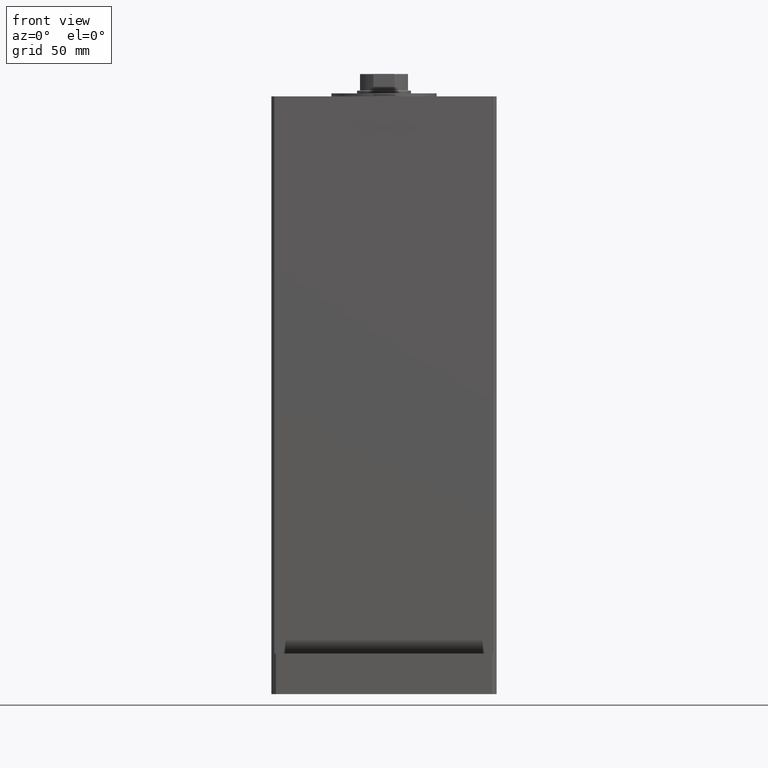
[diagram: clean part render]
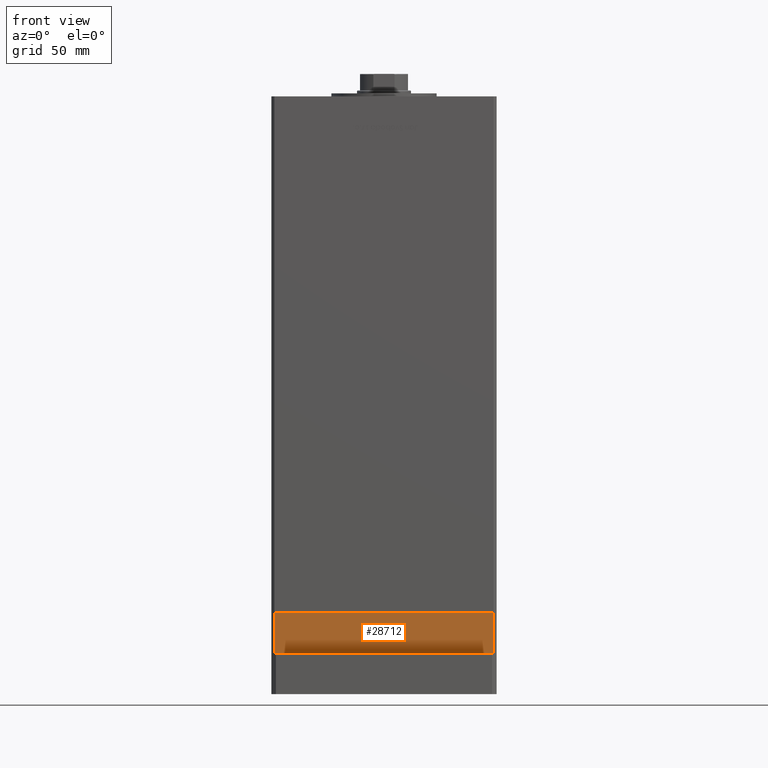
[diagram: same view with one face highlighted and labeled with its STEP entity id]
A machine part, front view. The second image highlights one B-rep face of the part: STEP entity #28712.
In plain terms, the highlighted planar face has unit normal (0, -1, -0).
Its self-contained STEP definition (entity closure, byte-faithful):
#2355 = ORIENTED_EDGE ( 'NONE', *, *, #38746, .T. ) ;
#5624 = CARTESIAN_POINT ( 'NONE',  ( -73.00000000000001421, -62.50000000000002842, -27.00000000000000000 ) ) ;
#7199 = VECTOR ( 'NONE', #11033, 1000.000000000000000 ) ;
#7972 = LINE ( 'NONE', #24619, #31412 ) ;
#10897 = ORIENTED_EDGE ( 'NONE', *, *, #37961, .F. ) ;
#11033 = DIRECTION ( 'NONE',  ( 0.000000000000000000, 0.000000000000000000, 1.000000000000000000 ) ) ;
#13716 = CARTESIAN_POINT ( 'NONE',  ( -73.00000000000001421, -62.50000000000002842, 0.000000000000000000 ) ) ;
#14303 = ORIENTED_EDGE ( 'NONE', *, *, #54893, .T. ) ;
#14787 = PLANE ( 'NONE',  #19098 ) ;
#15602 = LINE ( 'NONE', #33098, #7199 ) ;
#17461 = LINE ( 'NONE', #13716, #34366 ) ;
#19098 = AXIS2_PLACEMENT_3D ( 'NONE', #5624, #49468, #19653 ) ;
#19181 = LINE ( 'NONE', #36678, #31450 ) ;
#19195 = CARTESIAN_POINT ( 'NONE',  ( 73.00000000000001421, -62.50000000000001421, -27.00000000000000000 ) ) ;
#19653 = DIRECTION ( 'NONE',  ( 1.000000000000000000, 9.505334114941407284E-17, 0.000000000000000000 ) ) ;
#22659 = VERTEX_POINT ( 'NONE', #38121 ) ;
#24619 = CARTESIAN_POINT ( 'NONE',  ( -73.00000000000001421, -62.50000000000002842, -27.00000000000000000 ) ) ;
#28712 = ADVANCED_FACE ( 'NONE', ( #45752 ), #14787, .T. ) ;
#29560 = CARTESIAN_POINT ( 'NONE',  ( -73.00000000000001421, -62.50000000000002842, 0.000000000000000000 ) ) ;
#31308 = VERTEX_POINT ( 'NONE', #29560 ) ;
#31412 = VECTOR ( 'NONE', #38078, 1000.000000000000000 ) ;
#31450 = VECTOR ( 'NONE', #44706, 1000.000000000000000 ) ;
#32738 = EDGE_LOOP ( 'NONE', ( #42031, #10897, #2355, #14303 ) ) ;
#33098 = CARTESIAN_POINT ( 'NONE',  ( 73.00000000000001421, -62.50000000000001421, -27.00000000000000000 ) ) ;
#34154 = VERTEX_POINT ( 'NONE', #19195 ) ;
#34366 = VECTOR ( 'NONE', #34948, 1000.000000000000000 ) ;
#34948 = DIRECTION ( 'NONE',  ( 1.000000000000000000, 9.505334114941407284E-17, 0.000000000000000000 ) ) ;
#35012 = CARTESIAN_POINT ( 'NONE',  ( -73.00000000000001421, -62.50000000000002842, -27.00000000000000000 ) ) ;
#36678 = CARTESIAN_POINT ( 'NONE',  ( -73.00000000000001421, -62.50000000000002842, -27.00000000000000000 ) ) ;
#37961 = EDGE_CURVE ( 'NONE', #56420, #31308, #7972, .T. ) ;
#38078 = DIRECTION ( 'NONE',  ( 0.000000000000000000, 0.000000000000000000, 1.000000000000000000 ) ) ;
#38121 = CARTESIAN_POINT ( 'NONE',  ( 73.00000000000001421, -62.50000000000001421, 0.000000000000000000 ) ) ;
#38746 = EDGE_CURVE ( 'NONE', #56420, #34154, #19181, .T. ) ;
#42031 = ORIENTED_EDGE ( 'NONE', *, *, #46979, .F. ) ;
#44706 = DIRECTION ( 'NONE',  ( 1.000000000000000000, 9.505334114941407284E-17, 0.000000000000000000 ) ) ;
#45752 = FACE_OUTER_BOUND ( 'NONE', #32738, .T. ) ;
#46979 = EDGE_CURVE ( 'NONE', #31308, #22659, #17461, .T. ) ;
#49468 = DIRECTION ( 'NONE',  ( 9.505334114941407284E-17, -1.000000000000000000, 0.000000000000000000 ) ) ;
#54893 = EDGE_CURVE ( 'NONE', #34154, #22659, #15602, .T. ) ;
#56420 = VERTEX_POINT ( 'NONE', #35012 ) ;